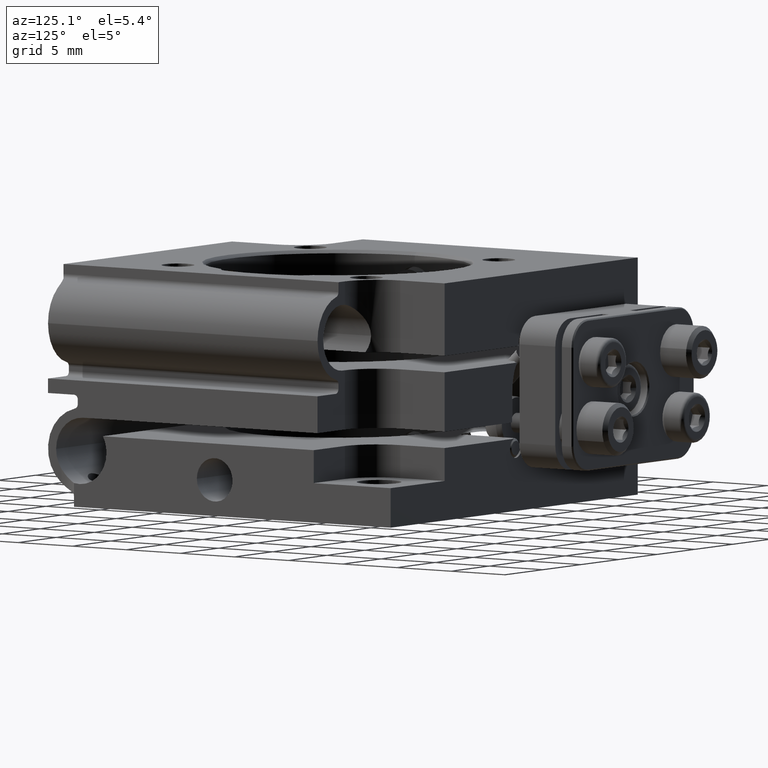
[diagram: clean part render]
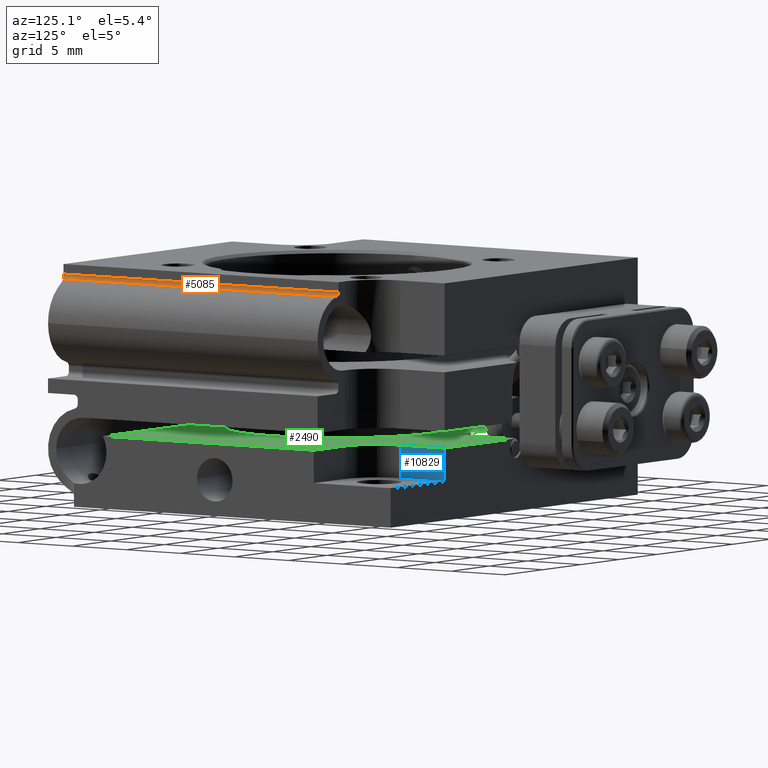
[diagram: same view with three faces highlighted in distinct colors, each labeled with its STEP entity id]
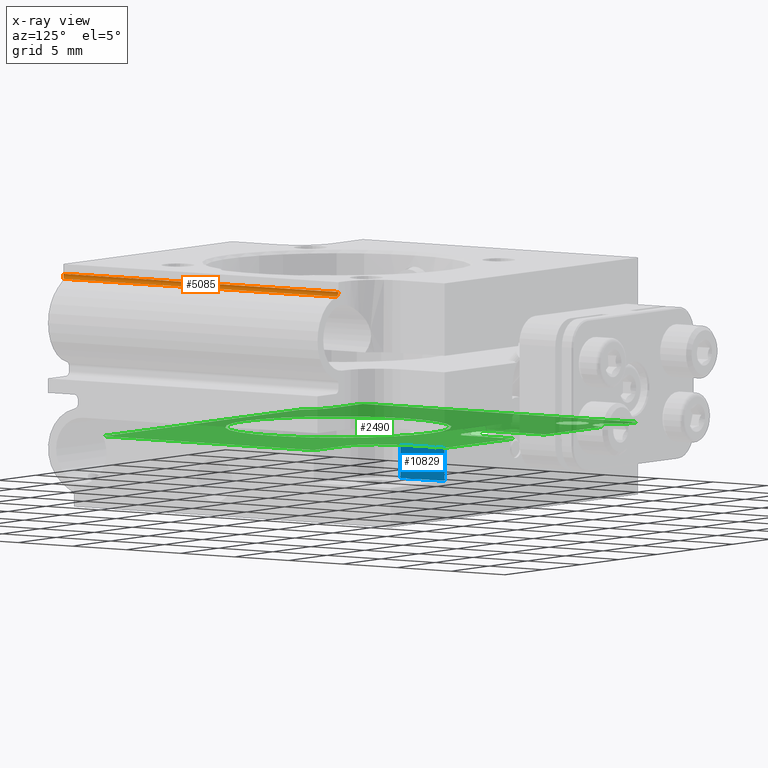
[diagram: x-ray of the same camera — body ghosted, the three highlighted faces saturated]
A machine part, auxiliary view with three faces highlighted in distinct colors.
The next image is the same camera in x-ray (body ghosted, the three faces saturated) — at least one of them is partly hidden behind the body in this view.
Their STEP definitions:

[orange] entity #5085 — the highlighted cylindrical surface (edge-blend (fillet) strip) has radius 0.35 mm, axis along (-0, -1, 0).
#54 = B_SPLINE_CURVE_WITH_KNOTS ( 'NONE', 3,
 ( #6956, #1641, #6733, #11265, #4251, #9523 ),
 .UNSPECIFIED., .F., .F.,
 ( 4, 2, 4 ),
 ( 0.000000000000000000, 0.0002502785678414661680, 0.0005005571356829323360 ),
 .UNSPECIFIED. ) ;
#547 = EDGE_CURVE ( 'NONE', #5252, #1242, #3407, .T. ) ;
#687 = CARTESIAN_POINT ( 'NONE',  ( 12.99999999999998401, -16.24999999999994316, 8.248213829942359965 ) ) ;
#787 = VECTOR ( 'NONE', #9528, 1000.000000000000000 ) ;
#1242 = VERTEX_POINT ( 'NONE', #4911 ) ;
#1259 = DIRECTION ( 'NONE',  ( -1.763571790789901662E-15, -1.000000000000000000, 5.551115123125782702E-17 ) ) ;
#1465 = EDGE_CURVE ( 'NONE', #5252, #4176, #10799, .T. ) ;
#1467 = EDGE_CURVE ( 'NONE', #9734, #4176, #5583, .T. ) ;
#1641 = CARTESIAN_POINT ( 'NONE',  ( 12.99999999999998224, -16.24999999999994316, 8.163416250344514680 ) ) ;
#1824 = EDGE_LOOP ( 'NONE', ( #3211, #8361, #7440, #7480 ) ) ;
#1952 = CARTESIAN_POINT ( 'NONE',  ( 13.00000000000003908, 9.150000000000030553, 8.248213829942358188 ) ) ;
#2753 = AXIS2_PLACEMENT_3D ( 'NONE', #7438, #9030, #10928 ) ;
#3211 = ORIENTED_EDGE ( 'NONE', *, *, #547, .F. ) ;
#3407 = LINE ( 'NONE', #7820, #787 ) ;
#4164 = CARTESIAN_POINT ( 'NONE',  ( 13.26736111111114980, 9.150000000000028777, 7.908109707586851833 ) ) ;
#4176 = VERTEX_POINT ( 'NONE', #1952 ) ;
#4251 = CARTESIAN_POINT ( 'NONE',  ( 13.19546394986029725, -16.11575184989414211, 7.925579362111679238 ) ) ;
#4911 = CARTESIAN_POINT ( 'NONE',  ( 13.26736111111109118, -16.07500543228287526, 7.908109707586855386 ) ) ;
#5085 = ADVANCED_FACE ( 'NONE', ( #5205 ), #9033, .F. ) ;
#5205 = FACE_OUTER_BOUND ( 'NONE', #1824, .T. ) ;
#5252 = VERTEX_POINT ( 'NONE', #4164 ) ;
#5583 = LINE ( 'NONE', #9089, #9142 ) ;
#6733 = CARTESIAN_POINT ( 'NONE',  ( 13.03204300920669922, -16.22548799950465437, 8.083070403127498693 ) ) ;
#6956 = CARTESIAN_POINT ( 'NONE',  ( 12.99999999999998401, -16.24999999999994316, 8.248213829942359965 ) ) ;
#6998 = AXIS2_PLACEMENT_3D ( 'NONE', #10654, #1259, #8226 ) ;
#7229 = EDGE_CURVE ( 'NONE', #9734, #1242, #54, .T. ) ;
#7438 = CARTESIAN_POINT ( 'NONE',  ( 13.35000000000003872, 9.150000000000030553, 8.248213829942358188 ) ) ;
#7440 = ORIENTED_EDGE ( 'NONE', *, *, #1467, .F. ) ;
#7480 = ORIENTED_EDGE ( 'NONE', *, *, #7229, .T. ) ;
#7820 = CARTESIAN_POINT ( 'NONE',  ( 13.26736111111115157, 16.25000000000006040, 7.908109707586851833 ) ) ;
#8223 = DIRECTION ( 'NONE',  ( 1.763571790789901662E-15, 1.000000000000000000, -5.551115123125782702E-17 ) ) ;
#8226 = DIRECTION ( 'NONE',  ( 1.000000000000000000, 0.000000000000000000, 0.000000000000000000 ) ) ;
#8361 = ORIENTED_EDGE ( 'NONE', *, *, #1465, .T. ) ;
#9030 = DIRECTION ( 'NONE',  ( 1.408764703807894679E-15, 1.000000000000000000, -5.551115123125783935E-17 ) ) ;
#9033 = CYLINDRICAL_SURFACE ( 'NONE', #6998, 0.3499999999999996447 ) ;
#9089 = CARTESIAN_POINT ( 'NONE',  ( 13.00000000000004086, 16.25000000000006040, 8.248213829942356412 ) ) ;
#9142 = VECTOR ( 'NONE', #8223, 1000.000000000000000 ) ;
#9523 = CARTESIAN_POINT ( 'NONE',  ( 13.26736111111109118, -16.07500543228287526, 7.908109707586855386 ) ) ;
#9528 = DIRECTION ( 'NONE',  ( -1.763571790789901662E-15, -1.000000000000000000, 5.551115123125782702E-17 ) ) ;
#9734 = VERTEX_POINT ( 'NONE', #687 ) ;
#10654 = CARTESIAN_POINT ( 'NONE',  ( 13.35000000000004050, 16.25000000000006040, 8.248213829942356412 ) ) ;
#10799 = CIRCLE ( 'NONE', #2753, 0.3499999999999996447 ) ;
#10928 = DIRECTION ( 'NONE',  ( 1.000000000000000000, 0.000000000000000000, 0.000000000000000000 ) ) ;
#11265 = CARTESIAN_POINT ( 'NONE',  ( 13.13010605763292382, -16.15788691662361742, 7.965343447037485092 ) ) ;

[blue] entity #10829 — the highlighted planar face has unit normal (-1, 0, -0).
#47 = DIRECTION ( 'NONE',  ( 1.831867990631508292E-15, 1.000000000000000000, -5.551115123125782702E-17 ) ) ;
#123 = DIRECTION ( 'NONE',  ( -9.244463733058801886E-33, 5.551115123125772841E-17, 1.000000000000000000 ) ) ;
#213 = LINE ( 'NONE', #4373, #9456 ) ;
#259 = VECTOR ( 'NONE', #7398, 1000.000000000000000 ) ;
#910 = ORIENTED_EDGE ( 'NONE', *, *, #3897, .F. ) ;
#1052 = VECTOR ( 'NONE', #123, 1000.000000000000000 ) ;
#1131 = CARTESIAN_POINT ( 'NONE',  ( 9.150000000000032330, 12.15000000000005009, -16.04091629284897635 ) ) ;
#1610 = EDGE_LOOP ( 'NONE', ( #910, #6656, #10957, #8810 ) ) ;
#2945 = DIRECTION ( 'NONE',  ( -1.831867990631508292E-15, -1.000000000000000000, 5.551115123125782702E-17 ) ) ;
#3690 = PLANE ( 'NONE',  #5989 ) ;
#3897 = EDGE_CURVE ( 'NONE', #9632, #9521, #6481, .T. ) ;
#4373 = CARTESIAN_POINT ( 'NONE',  ( 9.149999999999977263, -12.49999999999997158, -3.499999999999998668 ) ) ;
#4827 = FACE_OUTER_BOUND ( 'NONE', #1610, .T. ) ;
#4894 = CARTESIAN_POINT ( 'NONE',  ( 9.150000000000034106, 16.25000000000000355, -6.000000000000000888 ) ) ;
#5247 = CARTESIAN_POINT ( 'NONE',  ( 9.150000000000034106, 16.25000000000000355, -16.04091629284897635 ) ) ;
#5443 = VERTEX_POINT ( 'NONE', #4894 ) ;
#5989 = AXIS2_PLACEMENT_3D ( 'NONE', #1131, #7203, #2945 ) ;
#6402 = LINE ( 'NONE', #5247, #1052 ) ;
#6481 = LINE ( 'NONE', #9959, #259 ) ;
#6656 = ORIENTED_EDGE ( 'NONE', *, *, #8462, .F. ) ;
#7065 = VERTEX_POINT ( 'NONE', #9125 ) ;
#7203 = DIRECTION ( 'NONE',  ( -1.000000000000000000, 1.831867990631508292E-15, -1.109335647967047632E-31 ) ) ;
#7300 = LINE ( 'NONE', #7352, #8703 ) ;
#7352 = CARTESIAN_POINT ( 'NONE',  ( 9.150000000000032330, 12.15000000000005187, -6.000000000000000888 ) ) ;
#7398 = DIRECTION ( 'NONE',  ( -9.244463733058801886E-33, 5.551115123125772841E-17, 1.000000000000000000 ) ) ;
#7467 = DIRECTION ( 'NONE',  ( -1.831867990631508292E-15, -1.000000000000000000, 5.551115123125782702E-17 ) ) ;
#8462 = EDGE_CURVE ( 'NONE', #5443, #9632, #7300, .T. ) ;
#8703 = VECTOR ( 'NONE', #7467, 1000.000000000000000 ) ;
#8810 = ORIENTED_EDGE ( 'NONE', *, *, #9854, .F. ) ;
#9125 = CARTESIAN_POINT ( 'NONE',  ( 9.150000000000034106, 16.25000000000000355, -3.500000000000003997 ) ) ;
#9456 = VECTOR ( 'NONE', #47, 1000.000000000000000 ) ;
#9498 = EDGE_CURVE ( 'NONE', #5443, #7065, #6402, .T. ) ;
#9521 = VERTEX_POINT ( 'NONE', #10044 ) ;
#9632 = VERTEX_POINT ( 'NONE', #10283 ) ;
#9854 = EDGE_CURVE ( 'NONE', #9521, #7065, #213, .T. ) ;
#9959 = CARTESIAN_POINT ( 'NONE',  ( 9.150000000000032330, 12.15000000000005009, -16.04091629284897635 ) ) ;
#10044 = CARTESIAN_POINT ( 'NONE',  ( 9.150000000000032330, 12.15000000000005187, -3.500000000000000444 ) ) ;
#10283 = CARTESIAN_POINT ( 'NONE',  ( 9.150000000000032330, 12.15000000000005187, -6.000000000000000888 ) ) ;
#10829 = ADVANCED_FACE ( 'NONE', ( #4827 ), #3690, .F. ) ;
#10957 = ORIENTED_EDGE ( 'NONE', *, *, #9498, .T. ) ;

[green] entity #2490 — the highlighted planar face has unit normal (0, -0, -1).
#37 = CARTESIAN_POINT ( 'NONE',  ( -14.46122927774571032, 16.24999999999995026, -3.500000000000000444 ) ) ;
#47 = DIRECTION ( 'NONE',  ( 1.831867990631508292E-15, 1.000000000000000000, -5.551115123125782702E-17 ) ) ;
#104 = CARTESIAN_POINT ( 'NONE',  ( -1.027957978442298526, 10.75853433984306307, -3.499999999999999112 ) ) ;
#213 = LINE ( 'NONE', #4373, #9456 ) ;
#248 = DIRECTION ( 'NONE',  ( 1.000000000000000000, 1.609823385706476984E-15, -8.011868568650903338E-32 ) ) ;
#388 = EDGE_CURVE ( 'NONE', #5550, #10073, #3803, .T. ) ;
#490 = CARTESIAN_POINT ( 'NONE',  ( -3.758245093145089033, 11.25000000000000000, -3.500000000000000000 ) ) ;
#540 = DIRECTION ( 'NONE',  ( 1.000000000000000000, 1.734723475976809658E-15, 0.000000000000000000 ) ) ;
#548 = CARTESIAN_POINT ( 'NONE',  ( -12.99999999999996980, 14.60786437626904544, -3.500000000000000000 ) ) ;
#567 = CARTESIAN_POINT ( 'NONE',  ( -16.24999999999994671, 11.24999999999997158, -3.500000000000000000 ) ) ;
#639 = VERTEX_POINT ( 'NONE', #4427 ) ;
#650 = ORIENTED_EDGE ( 'NONE', *, *, #6920, .T. ) ;
#829 = VERTEX_POINT ( 'NONE', #490 ) ;
#830 = VERTEX_POINT ( 'NONE', #5741 ) ;
#989 = CARTESIAN_POINT ( 'NONE',  ( -16.24999999999994316, 16.24999999999995026, -3.500000000000000444 ) ) ;
#1026 = DIRECTION ( 'NONE',  ( 1.000000000000000000, 1.387778780781452184E-15, 0.000000000000000000 ) ) ;
#1113 = EDGE_CURVE ( 'NONE', #639, #10988, #7180, .T. ) ;
#1120 = CARTESIAN_POINT ( 'NONE',  ( -1.123121447358591318, 10.74999999999999645, -3.499999999999999112 ) ) ;
#1160 = CARTESIAN_POINT ( 'NONE',  ( -16.25000000000000355, -9.150000000000019895, -3.500000000000002665 ) ) ;
#1231 = LINE ( 'NONE', #4701, #3199 ) ;
#1306 = EDGE_CURVE ( 'NONE', #10110, #7065, #1625, .T. ) ;
#1307 = CARTESIAN_POINT ( 'NONE',  ( -13.72741480163219485, 14.60786437626902234, -3.500000000000000444 ) ) ;
#1320 = EDGE_CURVE ( 'NONE', #3259, #2329, #3320, .T. ) ;
#1334 = EDGE_CURVE ( 'NONE', #2787, #4296, #2300, .T. ) ;
#1341 = DIRECTION ( 'NONE',  ( 9.244463733058804623E-33, -5.551115123125772225E-17, -1.000000000000000000 ) ) ;
#1426 = EDGE_CURVE ( 'NONE', #6987, #9222, #2164, .T. ) ;
#1554 = CARTESIAN_POINT ( 'NONE',  ( -12.15000000000006075, -9.150000000000028777, -3.500000000000002665 ) ) ;
#1589 = DIRECTION ( 'NONE',  ( 1.000000000000000000, 1.609823385706476984E-15, 0.000000000000000000 ) ) ;
#1625 = LINE ( 'NONE', #4966, #8404 ) ;
#1719 = CARTESIAN_POINT ( 'NONE',  ( -16.25000000000000711, 9.149999999999966604, -3.500000000000000000 ) ) ;
#1730 = AXIS2_PLACEMENT_3D ( 'NONE', #3586, #5512, #1026 ) ;
#1765 = LINE ( 'NONE', #5348, #4062 ) ;
#1831 = EDGE_CURVE ( 'NONE', #3259, #829, #7072, .T. ) ;
#1838 = VECTOR ( 'NONE', #1961, 1000.000000000000000 ) ;
#1960 = FACE_OUTER_BOUND ( 'NONE', #9646, .T. ) ;
#1961 = DIRECTION ( 'NONE',  ( 1.626979391106688600E-15, 1.000000000000000000, -5.551115123125782702E-17 ) ) ;
#1986 = CARTESIAN_POINT ( 'NONE',  ( -2.780624749799772921, 10.75000000000000000, -3.500000000000000000 ) ) ;
#1987 = CARTESIAN_POINT ( 'NONE',  ( -16.24999999999994316, 16.24999999999995026, -3.500000000000000444 ) ) ;
#2156 = CARTESIAN_POINT ( 'NONE',  ( -13.94999999999996554, 12.69999999999997264, -3.500000000000000444 ) ) ;
#2164 = LINE ( 'NONE', #567, #6585 ) ;
#2169 = LINE ( 'NONE', #5706, #5564 ) ;
#2300 = LINE ( 'NONE', #5844, #10613 ) ;
#2329 = VERTEX_POINT ( 'NONE', #3841 ) ;
#2362 = CARTESIAN_POINT ( 'NONE',  ( 3.235562306570586339E-32, -1.942890293094019755E-16, -3.499999999999999556 ) ) ;
#2490 = ADVANCED_FACE ( 'NONE', ( #1960, #7976, #3723 ), #8878, .F. ) ;
#2574 = CARTESIAN_POINT ( 'NONE',  ( 16.25000000000000355, -10.33493649053887609, -3.499999999999999112 ) ) ;
#2630 = ORIENTED_EDGE ( 'NONE', *, *, #7791, .F. ) ;
#2643 = VECTOR ( 'NONE', #4774, 1000.000000000000000 ) ;
#2695 = CIRCLE ( 'NONE', #9819, 8.549999999999998934 ) ;
#2703 = AXIS2_PLACEMENT_3D ( 'NONE', #8057, #3699, #9993 ) ;
#2787 = VERTEX_POINT ( 'NONE', #1160 ) ;
#2788 = CARTESIAN_POINT ( 'NONE',  ( -3.657591393914052968, 11.08573227961132446, -3.499999999999998668 ) ) ;
#2812 = VERTEX_POINT ( 'NONE', #11067 ) ;
#2844 = AXIS2_PLACEMENT_3D ( 'NONE', #7860, #8823, #248 ) ;
#2884 = ORIENTED_EDGE ( 'NONE', *, *, #4597, .F. ) ;
#2894 = CARTESIAN_POINT ( 'NONE',  ( -0.2417549068548577873, 11.25000000000000000, -3.500000000000000000 ) ) ;
#3113 = CARTESIAN_POINT ( 'NONE',  ( 16.24999999999995026, -12.49999999999997335, -3.499999999999998668 ) ) ;
#3199 = VECTOR ( 'NONE', #10258, 1000.000000000000000 ) ;
#3204 = EDGE_LOOP ( 'NONE', ( #650, #10039 ) ) ;
#3259 = VERTEX_POINT ( 'NONE', #7822 ) ;
#3320 = LINE ( 'NONE', #11241, #7683 ) ;
#3323 = VECTOR ( 'NONE', #4109, 1000.000000000000000 ) ;
#3360 = CIRCLE ( 'NONE', #5918, 8.549999999999998934 ) ;
#3382 = DIRECTION ( 'NONE',  ( 1.000000000000000000, 1.862012500296397526E-15, -9.411799376538712232E-32 ) ) ;
#3398 = CARTESIAN_POINT ( 'NONE',  ( -0.007971356303254290357, 16.25000000000000000, -3.500000000000000444 ) ) ;
#3559 = ORIENTED_EDGE ( 'NONE', *, *, #1334, .T. ) ;
#3574 = CARTESIAN_POINT ( 'NONE',  ( -1.219375250200175786, 10.75000000000000000, -3.500000000000000000 ) ) ;
#3586 = CARTESIAN_POINT ( 'NONE',  ( -12.69999999999997087, 12.69999999999997442, -3.500000000000000444 ) ) ;
#3634 = CARTESIAN_POINT ( 'NONE',  ( -0.007971356303262427945, 11.25000000000000000, -3.500000000000000000 ) ) ;
#3699 = DIRECTION ( 'NONE',  ( 9.244463733058804623E-33, -5.551115123125772225E-17, -1.000000000000000000 ) ) ;
#3701 = ORIENTED_EDGE ( 'NONE', *, *, #8422, .T. ) ;
#3715 = LINE ( 'NONE', #989, #8167 ) ;
#3723 = FACE_BOUND ( 'NONE', #9269, .T. ) ;
#3803 =( BOUNDED_CURVE ( )  B_SPLINE_CURVE ( 3, ( #4888, #10042, #4084, #10978 ),
 .UNSPECIFIED., .F., .T. ) 
 B_SPLINE_CURVE_WITH_KNOTS ( ( 4, 4 ),
 ( 1.798652719765728270, 3.141592653589789563 ),
 .UNSPECIFIED. ) 
 CURVE ( )  GEOMETRIC_REPRESENTATION_ITEM ( )  RATIONAL_B_SPLINE_CURVE ( ( 1.000000000000000000, 0.8552719936759791697, 0.8552719936759791697, 1.000000000000000000 ) ) 
 REPRESENTATION_ITEM ( '' )  );
#3841 = CARTESIAN_POINT ( 'NONE',  ( -1.219375250200175786, 10.75000000000000000, -3.500000000000000000 ) ) ;
#3863 = CARTESIAN_POINT ( 'NONE',  ( -14.29691366224819937, 15.24786959717073387, -3.500000000000000444 ) ) ;
#3983 = DIRECTION ( 'NONE',  ( 1.000000000000000000, 1.387778780781452184E-15, 0.000000000000000000 ) ) ;
#4062 = VECTOR ( 'NONE', #5551, 1000.000000000000000 ) ;
#4084 = CARTESIAN_POINT ( 'NONE',  ( -12.27258519836774653, 14.60786437626902412, -3.500000000000000444 ) ) ;
#4101 = CIRCLE ( 'NONE', #9409, 2.999999999999995559 ) ;
#4109 = DIRECTION ( 'NONE',  ( -1.000000000000000000, -2.032926672530090991E-15, 1.036056362278169495E-31 ) ) ;
#4276 = CIRCLE ( 'NONE', #5742, 1.249999999999994227 ) ;
#4296 = VERTEX_POINT ( 'NONE', #1554 ) ;
#4311 = VERTEX_POINT ( 'NONE', #5833 ) ;
#4373 = CARTESIAN_POINT ( 'NONE',  ( 9.149999999999977263, -12.49999999999997158, -3.499999999999998668 ) ) ;
#4422 = CARTESIAN_POINT ( 'NONE',  ( -8.549999999999998934, -1.397215676490759127E-14, -3.499999999999999556 ) ) ;
#4427 = CARTESIAN_POINT ( 'NONE',  ( -3.992028643696698964, 11.25000000000000000, -3.500000000000000000 ) ) ;
#4552 = LINE ( 'NONE', #1987, #9421 ) ;
#4597 = EDGE_CURVE ( 'NONE', #639, #829, #7432, .T. ) ;
#4635 = ORIENTED_EDGE ( 'NONE', *, *, #10944, .T. ) ;
#4696 = CIRCLE ( 'NONE', #2703, 2.999999999999999112 ) ;
#4701 = CARTESIAN_POINT ( 'NONE',  ( -16.24999999999999645, -10.33493649053892405, -3.499999999999999112 ) ) ;
#4774 = DIRECTION ( 'NONE',  ( 1.000000000000000000, 1.814711985231296676E-15, -9.149228772029194176E-32 ) ) ;
#4888 = CARTESIAN_POINT ( 'NONE',  ( -11.53877072225423284, 16.24999999999995026, -3.500000000000000444 ) ) ;
#4966 = CARTESIAN_POINT ( 'NONE',  ( -16.24999999999994316, 16.24999999999995026, -3.500000000000000444 ) ) ;
#5131 = ORIENTED_EDGE ( 'NONE', *, *, #1306, .F. ) ;
#5259 = VERTEX_POINT ( 'NONE', #2574 ) ;
#5265 = EDGE_CURVE ( 'NONE', #11158, #4311, #6755, .T. ) ;
#5348 = CARTESIAN_POINT ( 'NONE',  ( -0.007971356303262427945, 11.25000000000000000, -3.500000000000000000 ) ) ;
#5460 = CARTESIAN_POINT ( 'NONE',  ( -3.158063285085359162, 10.79736198769985123, -3.500000000000000444 ) ) ;
#5466 = ORIENTED_EDGE ( 'NONE', *, *, #9854, .T. ) ;
#5495 = VERTEX_POINT ( 'NONE', #5637 ) ;
#5496 = EDGE_CURVE ( 'NONE', #10073, #8370, #7839, .T. ) ;
#5512 = DIRECTION ( 'NONE',  ( 9.244463733058804623E-33, -5.551115123125772225E-17, -1.000000000000000000 ) ) ;
#5550 = VERTEX_POINT ( 'NONE', #9305 ) ;
#5551 = DIRECTION ( 'NONE',  ( -1.626979391106688600E-15, -1.000000000000000000, 5.551115123125782702E-17 ) ) ;
#5564 = VECTOR ( 'NONE', #7494, 1000.000000000000000 ) ;
#5612 = ORIENTED_EDGE ( 'NONE', *, *, #5745, .T. ) ;
#5637 = CARTESIAN_POINT ( 'NONE',  ( -11.44999999999997797, 12.69999999999997620, -3.500000000000000444 ) ) ;
#5700 = CARTESIAN_POINT ( 'NONE',  ( -14.46122927774571032, 16.24999999999995026, -3.500000000000000444 ) ) ;
#5706 = CARTESIAN_POINT ( 'NONE',  ( -16.25000000000005329, -12.50000000000002132, -3.499999999999998668 ) ) ;
#5741 = CARTESIAN_POINT ( 'NONE',  ( -9.761371846305378241, -10.33493649053892582, -3.499999999999999112 ) ) ;
#5742 = AXIS2_PLACEMENT_3D ( 'NONE', #5766, #9252, #3983 ) ;
#5745 = EDGE_CURVE ( 'NONE', #10110, #6987, #1765, .T. ) ;
#5766 = CARTESIAN_POINT ( 'NONE',  ( -12.69999999999997087, 12.69999999999997442, -3.500000000000000444 ) ) ;
#5833 = CARTESIAN_POINT ( 'NONE',  ( 12.15000000000005542, 9.150000000000028777, -3.500000000000003553 ) ) ;
#5844 = CARTESIAN_POINT ( 'NONE',  ( -16.24999999999998934, -9.150000000000019895, -3.499999999999999112 ) ) ;
#5879 = EDGE_CURVE ( 'NONE', #11077, #6073, #3360, .T. ) ;
#5918 = AXIS2_PLACEMENT_3D ( 'NONE', #2362, #11138, #7516 ) ;
#6073 = VERTEX_POINT ( 'NONE', #7001 ) ;
#6183 = B_SPLINE_CURVE_WITH_KNOTS ( 'NONE', 3,
 ( #2894, #7992, #7194, #7251, #8948, #104, #1120, #3574 ),
 .UNSPECIFIED., .F., .F.,
 ( 4, 2, 2, 4 ),
 ( 0.0005238964188724742899, 0.001095251628457769976, 0.001380929233250417602, 0.001666606838043065662 ),
 .UNSPECIFIED. ) ;
#6206 = ORIENTED_EDGE ( 'NONE', *, *, #1426, .T. ) ;
#6225 = ORIENTED_EDGE ( 'NONE', *, *, #1320, .F. ) ;
#6292 = CARTESIAN_POINT ( 'NONE',  ( -3.758245093145089033, 11.25000000000000000, -3.500000000000000000 ) ) ;
#6398 = CARTESIAN_POINT ( 'NONE',  ( -2.877059603855682823, 10.75000000000000355, -3.500000000000000444 ) ) ;
#6528 = VECTOR ( 'NONE', #7536, 1000.000000000000000 ) ;
#6575 = ORIENTED_EDGE ( 'NONE', *, *, #5879, .T. ) ;
#6585 = VECTOR ( 'NONE', #8170, 1000.000000000000000 ) ;
#6653 = EDGE_CURVE ( 'NONE', #8298, #5495, #4276, .T. ) ;
#6755 = LINE ( 'NONE', #1719, #3323 ) ;
#6920 = EDGE_CURVE ( 'NONE', #5495, #8298, #9578, .T. ) ;
#6987 = VERTEX_POINT ( 'NONE', #3634 ) ;
#7001 = CARTESIAN_POINT ( 'NONE',  ( 8.549999999999998934, 1.250875011740217174E-14, -3.499999999999999556 ) ) ;
#7065 = VERTEX_POINT ( 'NONE', #9125 ) ;
#7072 = B_SPLINE_CURVE_WITH_KNOTS ( 'NONE', 3,
 ( #1986, #6398, #9874, #5460, #8961, #9020, #2788, #6292 ),
 .UNSPECIFIED., .F., .F.,
 ( 4, 2, 2, 4 ),
 ( 4.336808689942017736E-19, 0.0002849609944708582647, 0.0005699219889417160958, 0.001139843977883430457 ),
 .UNSPECIFIED. ) ;
#7180 = LINE ( 'NONE', #10610, #1838 ) ;
#7194 = CARTESIAN_POINT ( 'NONE',  ( -0.4916543691654232662, 10.95447279845987865, -3.500000000000000444 ) ) ;
#7243 = ORIENTED_EDGE ( 'NONE', *, *, #1831, .T. ) ;
#7251 = CARTESIAN_POINT ( 'NONE',  ( -0.7486512842028276715, 10.82850118901933278, -3.500000000000000000 ) ) ;
#7265 = DIRECTION ( 'NONE',  ( 1.000000000000000000, 1.609823385706476984E-15, -8.011868568650903338E-32 ) ) ;
#7285 = DIRECTION ( 'NONE',  ( 1.000000000000000000, 1.609823385706476984E-15, -8.011868568650903338E-32 ) ) ;
#7423 = EDGE_CURVE ( 'NONE', #4296, #830, #4101, .T. ) ;
#7432 = LINE ( 'NONE', #9989, #2643 ) ;
#7465 = CARTESIAN_POINT ( 'NONE',  ( -12.15000000000003588, -12.15000000000001990, -3.499999999999998668 ) ) ;
#7494 = DIRECTION ( 'NONE',  ( 1.831867990631508292E-15, 1.000000000000000000, -5.551115123125782702E-17 ) ) ;
#7516 = DIRECTION ( 'NONE',  ( 1.000000000000000000, 1.609823385706476984E-15, 0.000000000000000000 ) ) ;
#7534 = EDGE_CURVE ( 'NONE', #830, #5259, #1231, .T. ) ;
#7536 = DIRECTION ( 'NONE',  ( 1.831867990631508292E-15, 1.000000000000000000, -5.551115123125782702E-17 ) ) ;
#7666 = ORIENTED_EDGE ( 'NONE', *, *, #388, .T. ) ;
#7683 = VECTOR ( 'NONE', #3382, 1000.000000000000000 ) ;
#7759 = ORIENTED_EDGE ( 'NONE', *, *, #7423, .T. ) ;
#7765 = ORIENTED_EDGE ( 'NONE', *, *, #5265, .T. ) ;
#7791 = EDGE_CURVE ( 'NONE', #2787, #2812, #2169, .T. ) ;
#7822 = CARTESIAN_POINT ( 'NONE',  ( -2.780624749799772921, 10.75000000000000000, -3.500000000000000000 ) ) ;
#7839 =( BOUNDED_CURVE ( )  B_SPLINE_CURVE ( 3, ( #8169, #1307, #3863, #5700 ),
 .UNSPECIFIED., .F., .F. ) 
 B_SPLINE_CURVE_WITH_KNOTS ( ( 4, 4 ),
 ( 3.141592653589789563, 4.484532587413855076 ),
 .UNSPECIFIED. ) 
 CURVE ( )  GEOMETRIC_REPRESENTATION_ITEM ( )  RATIONAL_B_SPLINE_CURVE ( ( 1.000000000000000000, 0.8552719936759785035, 0.8552719936759785035, 1.000000000000000000 ) ) 
 REPRESENTATION_ITEM ( '' )  );
#7860 = CARTESIAN_POINT ( 'NONE',  ( -16.25000000000005329, -12.50000000000002132, -3.499999999999998668 ) ) ;
#7976 = FACE_BOUND ( 'NONE', #3204, .T. ) ;
#7992 = CARTESIAN_POINT ( 'NONE',  ( -0.3413892626652061946, 11.08739585701872876, -3.500000000000001332 ) ) ;
#8057 = CARTESIAN_POINT ( 'NONE',  ( 12.15000000000003233, 12.15000000000003055, -3.500000000000000444 ) ) ;
#8082 = EDGE_CURVE ( 'NONE', #2812, #8370, #4552, .T. ) ;
#8167 = VECTOR ( 'NONE', #7285, 1000.000000000000000 ) ;
#8169 = CARTESIAN_POINT ( 'NONE',  ( -12.99999999999996980, 14.60786437626904544, -3.500000000000000000 ) ) ;
#8170 = DIRECTION ( 'NONE',  ( -1.000000000000000000, -1.814711985231296676E-15, 9.149228772029194176E-32 ) ) ;
#8183 = CARTESIAN_POINT ( 'NONE',  ( -0.2417549068548577873, 11.25000000000000000, -3.500000000000000000 ) ) ;
#8298 = VERTEX_POINT ( 'NONE', #2156 ) ;
#8370 = VERTEX_POINT ( 'NONE', #37 ) ;
#8404 = VECTOR ( 'NONE', #9452, 1000.000000000000000 ) ;
#8422 = EDGE_CURVE ( 'NONE', #9222, #2329, #6183, .T. ) ;
#8499 = ORIENTED_EDGE ( 'NONE', *, *, #1113, .T. ) ;
#8823 = DIRECTION ( 'NONE',  ( 9.244463733058545985E-33, -5.551115123125772225E-17, -1.000000000000000000 ) ) ;
#8878 = PLANE ( 'NONE',  #2844 ) ;
#8948 = CARTESIAN_POINT ( 'NONE',  ( -0.8404582161515559147, 10.79773209055081473, -3.499999999999999556 ) ) ;
#8961 = CARTESIAN_POINT ( 'NONE',  ( -3.250608909671488966, 10.82817703977339363, -3.500000000000000444 ) ) ;
#9020 = CARTESIAN_POINT ( 'NONE',  ( -3.508772448822785162, 10.95460528604543526, -3.500000000000000000 ) ) ;
#9066 = EDGE_CURVE ( 'NONE', #5550, #10988, #3715, .T. ) ;
#9125 = CARTESIAN_POINT ( 'NONE',  ( 9.150000000000034106, 16.25000000000000355, -3.500000000000003997 ) ) ;
#9164 = ORIENTED_EDGE ( 'NONE', *, *, #9508, .T. ) ;
#9222 = VERTEX_POINT ( 'NONE', #8183 ) ;
#9237 = CARTESIAN_POINT ( 'NONE',  ( -3.992028643696686085, 16.25000000000000000, -3.500000000000000444 ) ) ;
#9252 = DIRECTION ( 'NONE',  ( 9.244463733058804623E-33, -5.551115123125772225E-17, -1.000000000000000000 ) ) ;
#9269 = EDGE_LOOP ( 'NONE', ( #6575, #11076 ) ) ;
#9305 = CARTESIAN_POINT ( 'NONE',  ( -11.53877072225423284, 16.24999999999995026, -3.500000000000000444 ) ) ;
#9325 = DIRECTION ( 'NONE',  ( 1.000000000000000000, -8.258976158798101633E-17, 1.382911647872271046E-32 ) ) ;
#9409 = AXIS2_PLACEMENT_3D ( 'NONE', #7465, #1341, #540 ) ;
#9414 = DIRECTION ( 'NONE',  ( 9.244463733058804623E-33, -5.551115123125772225E-17, -1.000000000000000000 ) ) ;
#9421 = VECTOR ( 'NONE', #7265, 1000.000000000000000 ) ;
#9452 = DIRECTION ( 'NONE',  ( 1.000000000000000000, 1.609823385706476984E-15, -8.011868568650903338E-32 ) ) ;
#9456 = VECTOR ( 'NONE', #47, 1000.000000000000000 ) ;
#9508 = EDGE_CURVE ( 'NONE', #4311, #9521, #4696, .T. ) ;
#9521 = VERTEX_POINT ( 'NONE', #10044 ) ;
#9578 = CIRCLE ( 'NONE', #1730, 1.249999999999994227 ) ;
#9646 = EDGE_LOOP ( 'NONE', ( #4635, #7765, #9164, #5466, #5131, #5612, #6206, #3701, #6225, #7243, #2884, #8499, #10568, #7666, #11039, #10494, #2630, #3559, #7759, #10123 ) ) ;
#9819 = AXIS2_PLACEMENT_3D ( 'NONE', #10095, #9414, #1589 ) ;
#9854 = EDGE_CURVE ( 'NONE', #9521, #7065, #213, .T. ) ;
#9874 = CARTESIAN_POINT ( 'NONE',  ( -2.971989820509606695, 10.75858494642404395, -3.500000000000000000 ) ) ;
#9915 = CARTESIAN_POINT ( 'NONE',  ( 16.25000000000000355, 9.150000000000028777, -3.500000000000003553 ) ) ;
#9989 = CARTESIAN_POINT ( 'NONE',  ( -16.24999999999994671, 11.24999999999997158, -3.500000000000000000 ) ) ;
#9993 = DIRECTION ( 'NONE',  ( 1.000000000000000000, 1.734723475976807686E-15, 0.000000000000000000 ) ) ;
#10039 = ORIENTED_EDGE ( 'NONE', *, *, #6653, .T. ) ;
#10042 = CARTESIAN_POINT ( 'NONE',  ( -11.70308633775174556, 15.24786959717073742, -3.500000000000000444 ) ) ;
#10044 = CARTESIAN_POINT ( 'NONE',  ( 9.150000000000032330, 12.15000000000005187, -3.500000000000000444 ) ) ;
#10073 = VERTEX_POINT ( 'NONE', #548 ) ;
#10095 = CARTESIAN_POINT ( 'NONE',  ( 3.235562306570586339E-32, -1.942890293094019755E-16, -3.499999999999999556 ) ) ;
#10110 = VERTEX_POINT ( 'NONE', #3398 ) ;
#10123 = ORIENTED_EDGE ( 'NONE', *, *, #7534, .T. ) ;
#10258 = DIRECTION ( 'NONE',  ( 1.000000000000000000, 1.609823385706476984E-15, -8.011868568650903338E-32 ) ) ;
#10494 = ORIENTED_EDGE ( 'NONE', *, *, #8082, .F. ) ;
#10568 = ORIENTED_EDGE ( 'NONE', *, *, #9066, .F. ) ;
#10610 = CARTESIAN_POINT ( 'NONE',  ( -3.992028643696698964, 11.25000000000000000, -3.500000000000000000 ) ) ;
#10613 = VECTOR ( 'NONE', #9325, 1000.000000000000000 ) ;
#10944 = EDGE_CURVE ( 'NONE', #5259, #11158, #11029, .T. ) ;
#10978 = CARTESIAN_POINT ( 'NONE',  ( -12.99999999999996980, 14.60786437626904544, -3.500000000000000000 ) ) ;
#10981 = EDGE_CURVE ( 'NONE', #6073, #11077, #2695, .T. ) ;
#10988 = VERTEX_POINT ( 'NONE', #9237 ) ;
#11029 = LINE ( 'NONE', #3113, #6528 ) ;
#11039 = ORIENTED_EDGE ( 'NONE', *, *, #5496, .T. ) ;
#11067 = CARTESIAN_POINT ( 'NONE',  ( -16.24999999999994316, 16.24999999999995026, -3.500000000000000444 ) ) ;
#11076 = ORIENTED_EDGE ( 'NONE', *, *, #10981, .T. ) ;
#11077 = VERTEX_POINT ( 'NONE', #4422 ) ;
#11138 = DIRECTION ( 'NONE',  ( 9.244463733058804623E-33, -5.551115123125772225E-17, -1.000000000000000000 ) ) ;
#11158 = VERTEX_POINT ( 'NONE', #9915 ) ;
#11241 = CARTESIAN_POINT ( 'NONE',  ( -16.24999999999995026, 10.74999999999997513, -3.500000000000000000 ) ) ;